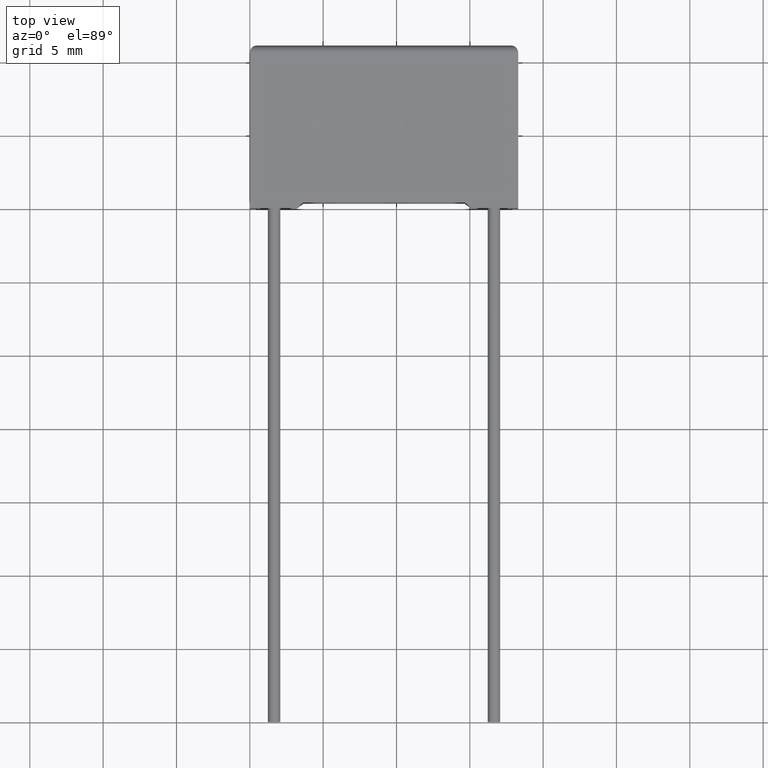
[diagram: clean part render]
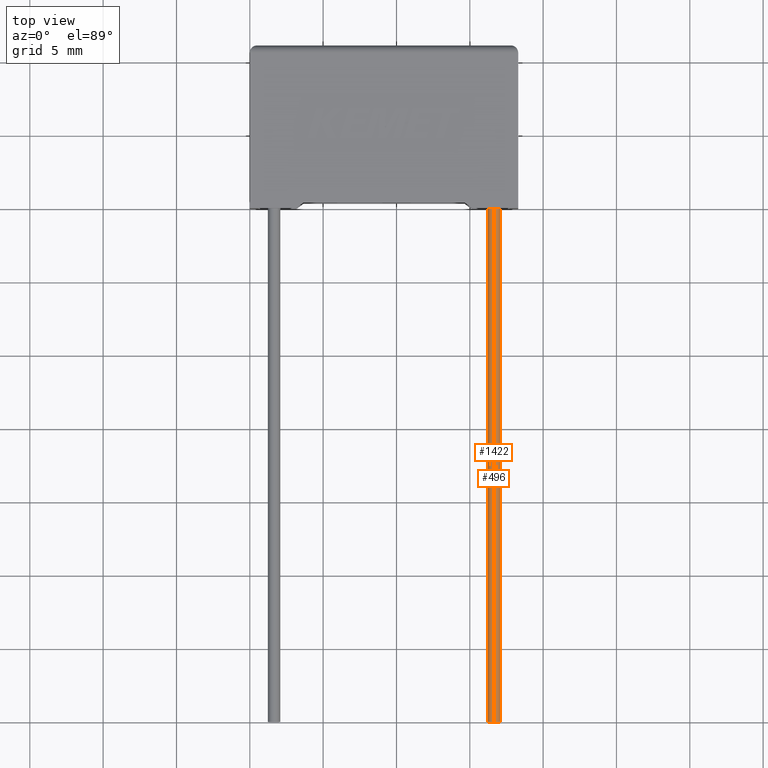
[diagram: same view with one multi-face feature highlighted, each face labeled with its STEP entity id]
A machine part, top view. The highlighted faces form ONE feature: a constant-radius fillet chain: 2 tangent blend faces with common blend radius 0.425 mm. The faces share edges in the B-rep.
Their STEP definitions:
[1] entity #1422 (Cylinder):
#56 = DIRECTION ( 'NONE',  ( 0.000000000000000000, 0.000000000000000000, -1.000000000000000000 ) ) ;
#110 = CIRCLE ( 'NONE', #1853, 0.4250000000000000444 ) ;
#152 = EDGE_LOOP ( 'NONE', ( #272, #414, #527, #2978 ) ) ;
#257 = CARTESIAN_POINT ( 'NONE',  ( 16.64999999999999858, -34.99999999999999289, 2.600000000000000089 ) ) ;
#272 = ORIENTED_EDGE ( 'NONE', *, *, #2905, .F. ) ;
#278 = DIRECTION ( 'NONE',  ( 0.000000000000000000, -1.000000000000000000, 0.000000000000000000 ) ) ;
#414 = ORIENTED_EDGE ( 'NONE', *, *, #971, .T. ) ;
#431 = CIRCLE ( 'NONE', #734, 0.4250000000000000444 ) ;
#435 = LINE ( 'NONE', #1377, #1373 ) ;
#450 = DIRECTION ( 'NONE',  ( -0.000000000000000000, 1.000000000000000000, -0.000000000000000000 ) ) ;
#474 = DIRECTION ( 'NONE',  ( -0.000000000000000000, 1.000000000000000000, -0.000000000000000000 ) ) ;
#527 = ORIENTED_EDGE ( 'NONE', *, *, #1123, .T. ) ;
#734 = AXIS2_PLACEMENT_3D ( 'NONE', #781, #278, #56 ) ;
#781 = CARTESIAN_POINT ( 'NONE',  ( 16.64999999999999858, 0.7500000000000006661, 2.600000000000000089 ) ) ;
#865 = VECTOR ( 'NONE', #450, 1000.000000000000000 ) ;
#871 = CARTESIAN_POINT ( 'NONE',  ( 16.64999999999999858, 0.7500000000000006661, 2.174999999999999822 ) ) ;
#924 = AXIS2_PLACEMENT_3D ( 'NONE', #2327, #474, #2779 ) ;
#971 = EDGE_CURVE ( 'NONE', #1149, #1810, #110, .T. ) ;
#1123 = EDGE_CURVE ( 'NONE', #1810, #2199, #2259, .T. ) ;
#1149 = VERTEX_POINT ( 'NONE', #2066 ) ;
#1239 = DIRECTION ( 'NONE',  ( 0.000000000000000000, 0.000000000000000000, -1.000000000000000000 ) ) ;
#1373 = VECTOR ( 'NONE', #2307, 1000.000000000000000 ) ;
#1377 = CARTESIAN_POINT ( 'NONE',  ( 16.64999999999999858, -34.99999999999999289, 2.174999999999999822 ) ) ;
#1422 = ADVANCED_FACE ( 'NONE', ( #2671 ), #2210, .T. ) ;
#1610 = EDGE_CURVE ( 'NONE', #2199, #2378, #431, .T. ) ;
#1810 = VERTEX_POINT ( 'NONE', #2432 ) ;
#1828 = CARTESIAN_POINT ( 'NONE',  ( 16.64999999999999858, -34.99999999999999289, 3.024999999999999911 ) ) ;
#1853 = AXIS2_PLACEMENT_3D ( 'NONE', #257, #2399, #1239 ) ;
#2066 = CARTESIAN_POINT ( 'NONE',  ( 16.64999999999999858, -34.99999999999999289, 2.174999999999999822 ) ) ;
#2199 = VERTEX_POINT ( 'NONE', #2316 ) ;
#2210 = CYLINDRICAL_SURFACE ( 'NONE', #924, 0.4250000000000000444 ) ;
#2259 = LINE ( 'NONE', #1828, #865 ) ;
#2307 = DIRECTION ( 'NONE',  ( -0.000000000000000000, 1.000000000000000000, -0.000000000000000000 ) ) ;
#2316 = CARTESIAN_POINT ( 'NONE',  ( 16.64999999999999858, 0.7500000000000006661, 3.024999999999999911 ) ) ;
#2327 = CARTESIAN_POINT ( 'NONE',  ( 16.64999999999999858, -34.99999999999999289, 2.600000000000000089 ) ) ;
#2378 = VERTEX_POINT ( 'NONE', #871 ) ;
#2399 = DIRECTION ( 'NONE',  ( -0.000000000000000000, 1.000000000000000000, -0.000000000000000000 ) ) ;
#2432 = CARTESIAN_POINT ( 'NONE',  ( 16.64999999999999858, -34.99999999999999289, 3.024999999999999911 ) ) ;
#2671 = FACE_OUTER_BOUND ( 'NONE', #152, .T. ) ;
#2779 = DIRECTION ( 'NONE',  ( 0.000000000000000000, 0.000000000000000000, 1.000000000000000000 ) ) ;
#2905 = EDGE_CURVE ( 'NONE', #1149, #2378, #435, .T. ) ;
#2978 = ORIENTED_EDGE ( 'NONE', *, *, #1610, .T. ) ;
[2] entity #496 (Cylinder):
#94 = DIRECTION ( 'NONE',  ( 0.000000000000000000, 0.000000000000000000, -1.000000000000000000 ) ) ;
#119 = CARTESIAN_POINT ( 'NONE',  ( 16.64999999999999858, -34.99999999999999289, 2.600000000000000089 ) ) ;
#126 = EDGE_CURVE ( 'NONE', #2378, #2199, #2039, .T. ) ;
#210 = AXIS2_PLACEMENT_3D ( 'NONE', #2431, #1755, #1785 ) ;
#370 = DIRECTION ( 'NONE',  ( 0.000000000000000000, -1.000000000000000000, 0.000000000000000000 ) ) ;
#435 = LINE ( 'NONE', #1377, #1373 ) ;
#450 = DIRECTION ( 'NONE',  ( -0.000000000000000000, 1.000000000000000000, -0.000000000000000000 ) ) ;
#496 = ADVANCED_FACE ( 'NONE', ( #1687 ), #2607, .T. ) ;
#590 = ORIENTED_EDGE ( 'NONE', *, *, #126, .T. ) ;
#642 = EDGE_LOOP ( 'NONE', ( #2580, #2179, #590, #2060 ) ) ;
#819 = EDGE_CURVE ( 'NONE', #1810, #1149, #1949, .T. ) ;
#865 = VECTOR ( 'NONE', #450, 1000.000000000000000 ) ;
#871 = CARTESIAN_POINT ( 'NONE',  ( 16.64999999999999858, 0.7500000000000006661, 2.174999999999999822 ) ) ;
#903 = AXIS2_PLACEMENT_3D ( 'NONE', #119, #1083, #1290 ) ;
#1083 = DIRECTION ( 'NONE',  ( -0.000000000000000000, 1.000000000000000000, -0.000000000000000000 ) ) ;
#1123 = EDGE_CURVE ( 'NONE', #1810, #2199, #2259, .T. ) ;
#1149 = VERTEX_POINT ( 'NONE', #2066 ) ;
#1290 = DIRECTION ( 'NONE',  ( 0.000000000000000000, 0.000000000000000000, 1.000000000000000000 ) ) ;
#1373 = VECTOR ( 'NONE', #2307, 1000.000000000000000 ) ;
#1377 = CARTESIAN_POINT ( 'NONE',  ( 16.64999999999999858, -34.99999999999999289, 2.174999999999999822 ) ) ;
#1687 = FACE_OUTER_BOUND ( 'NONE', #642, .T. ) ;
#1755 = DIRECTION ( 'NONE',  ( -0.000000000000000000, 1.000000000000000000, -0.000000000000000000 ) ) ;
#1785 = DIRECTION ( 'NONE',  ( 0.000000000000000000, 0.000000000000000000, -1.000000000000000000 ) ) ;
#1810 = VERTEX_POINT ( 'NONE', #2432 ) ;
#1828 = CARTESIAN_POINT ( 'NONE',  ( 16.64999999999999858, -34.99999999999999289, 3.024999999999999911 ) ) ;
#1846 = AXIS2_PLACEMENT_3D ( 'NONE', #2048, #370, #94 ) ;
#1949 = CIRCLE ( 'NONE', #210, 0.4250000000000000444 ) ;
#2039 = CIRCLE ( 'NONE', #1846, 0.4250000000000000444 ) ;
#2048 = CARTESIAN_POINT ( 'NONE',  ( 16.64999999999999858, 0.7500000000000006661, 2.600000000000000089 ) ) ;
#2060 = ORIENTED_EDGE ( 'NONE', *, *, #1123, .F. ) ;
#2066 = CARTESIAN_POINT ( 'NONE',  ( 16.64999999999999858, -34.99999999999999289, 2.174999999999999822 ) ) ;
#2179 = ORIENTED_EDGE ( 'NONE', *, *, #2905, .T. ) ;
#2199 = VERTEX_POINT ( 'NONE', #2316 ) ;
#2259 = LINE ( 'NONE', #1828, #865 ) ;
#2307 = DIRECTION ( 'NONE',  ( -0.000000000000000000, 1.000000000000000000, -0.000000000000000000 ) ) ;
#2316 = CARTESIAN_POINT ( 'NONE',  ( 16.64999999999999858, 0.7500000000000006661, 3.024999999999999911 ) ) ;
#2378 = VERTEX_POINT ( 'NONE', #871 ) ;
#2431 = CARTESIAN_POINT ( 'NONE',  ( 16.64999999999999858, -34.99999999999999289, 2.600000000000000089 ) ) ;
#2432 = CARTESIAN_POINT ( 'NONE',  ( 16.64999999999999858, -34.99999999999999289, 3.024999999999999911 ) ) ;
#2580 = ORIENTED_EDGE ( 'NONE', *, *, #819, .T. ) ;
#2607 = CYLINDRICAL_SURFACE ( 'NONE', #903, 0.4250000000000000444 ) ;
#2905 = EDGE_CURVE ( 'NONE', #1149, #2378, #435, .T. ) ;